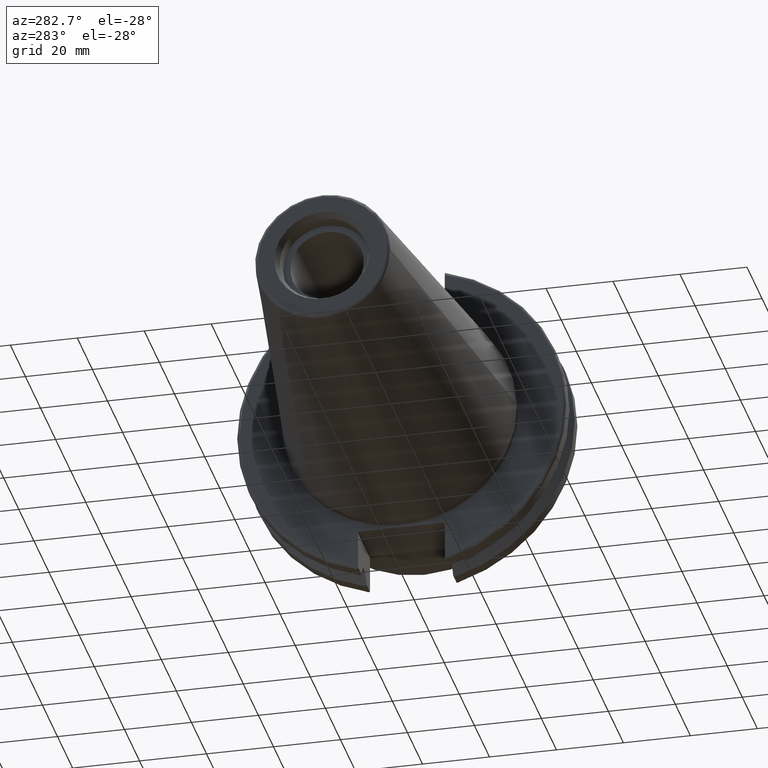
[diagram: clean part render]
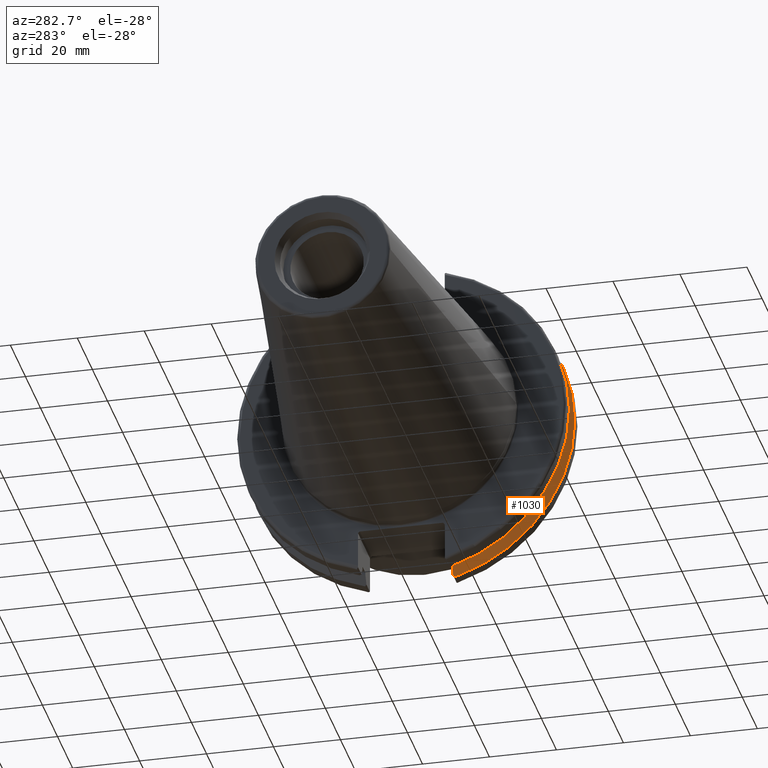
[diagram: same view with one face highlighted and labeled with its STEP entity id]
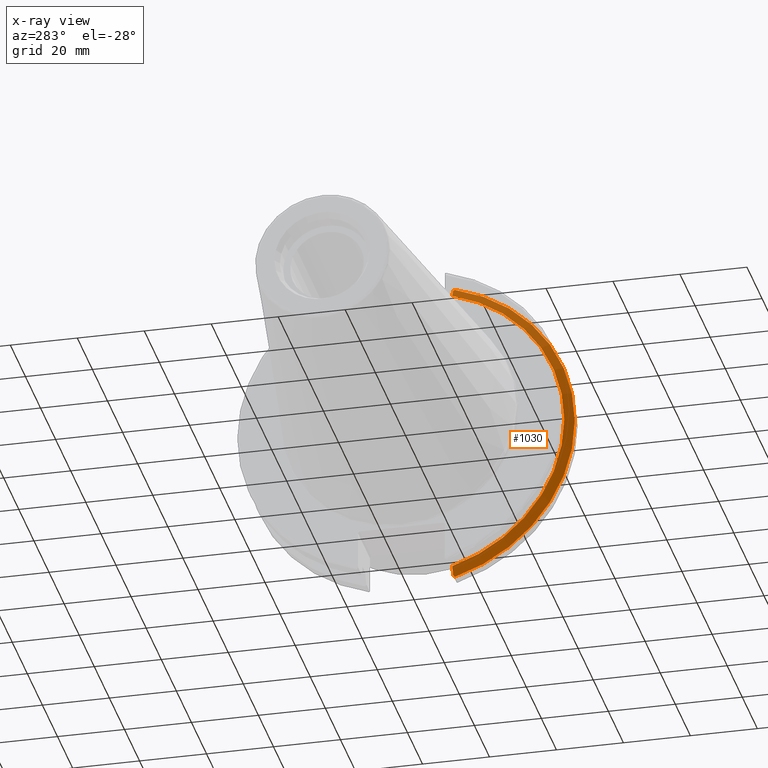
[diagram: x-ray of the same camera — body ghosted, the highlighted face saturated]
A machine part, auxiliary view. The second image highlights one B-rep face of the part: STEP entity #1030.
The next image is the same camera in x-ray: the body ghosted, the highlighted face saturated — about 0% of this face is hidden behind the body in this view.
In plain terms, the highlighted conical surface has half-angle 60 deg.
Its self-contained STEP definition (entity closure, byte-faithful):
#19=(
BOUNDED_CURVE()
B_SPLINE_CURVE(2,(#1713,#1714,#1715),.UNSPECIFIED.,.F.,.F.)
B_SPLINE_CURVE_WITH_KNOTS((3,3),(0.0558332664529572,0.331657177124506),
 .UNSPECIFIED.)
CURVE()
GEOMETRIC_REPRESENTATION_ITEM()
RATIONAL_B_SPLINE_CURVE((1.00012873636816,1.00038235574567,1.))
REPRESENTATION_ITEM('')
);
#20=(
BOUNDED_CURVE()
B_SPLINE_CURVE(2,(#1721,#1722,#1723),.UNSPECIFIED.,.F.,.F.)
B_SPLINE_CURVE_WITH_KNOTS((3,3),(0.,0.27582391067293),.UNSPECIFIED.)
CURVE()
GEOMETRIC_REPRESENTATION_ITEM()
RATIONAL_B_SPLINE_CURVE((1.,1.00038235573837,1.00012873636569))
REPRESENTATION_ITEM('')
);
#27=(
BOUNDED_CURVE()
B_SPLINE_CURVE(2,(#1856,#1857,#1858),.UNSPECIFIED.,.F.,.F.)
B_SPLINE_CURVE_WITH_KNOTS((3,3),(0.,0.0648240472897573),.UNSPECIFIED.)
CURVE()
GEOMETRIC_REPRESENTATION_ITEM()
RATIONAL_B_SPLINE_CURVE((1.,1.00011477674842,1.00019140645957))
REPRESENTATION_ITEM('')
);
#28=(
BOUNDED_CURVE()
B_SPLINE_CURVE(2,(#1872,#1873,#1874),.UNSPECIFIED.,.F.,.F.)
B_SPLINE_CURVE_WITH_KNOTS((3,3),(0.325260944932533,0.390084992222205),
 .UNSPECIFIED.)
CURVE()
GEOMETRIC_REPRESENTATION_ITEM()
RATIONAL_B_SPLINE_CURVE((1.00019140646005,1.0001147767487,1.))
REPRESENTATION_ITEM('')
);
#51=CONICAL_SURFACE('',#1153,47.8172386482472,1.0471975511966);
#142=FACE_OUTER_BOUND('',#206,.T.);
#206=EDGE_LOOP('',(#895,#896,#897,#898,#899,#900));
#402=CIRCLE('',#1147,49.2125);
#405=CIRCLE('',#1154,46.4219772964944);
#481=VERTEX_POINT('',#1710);
#482=VERTEX_POINT('',#1712);
#483=VERTEX_POINT('',#1718);
#484=VERTEX_POINT('',#1720);
#509=VERTEX_POINT('',#1854);
#510=VERTEX_POINT('',#1860);
#599=EDGE_CURVE('',#482,#481,#19,.T.);
#602=EDGE_CURVE('',#484,#483,#20,.T.);
#644=EDGE_CURVE('',#509,#483,#27,.T.);
#646=EDGE_CURVE('',#510,#509,#402,.T.);
#651=EDGE_CURVE('',#482,#510,#28,.T.);
#652=EDGE_CURVE('',#481,#484,#405,.T.);
#895=ORIENTED_EDGE('',*,*,#644,.F.);
#896=ORIENTED_EDGE('',*,*,#646,.F.);
#897=ORIENTED_EDGE('',*,*,#651,.F.);
#898=ORIENTED_EDGE('',*,*,#599,.T.);
#899=ORIENTED_EDGE('',*,*,#652,.T.);
#900=ORIENTED_EDGE('',*,*,#602,.T.);
#1030=ADVANCED_FACE('',(#142),#51,.T.);
#1147=AXIS2_PLACEMENT_3D('',#1862,#1398,#1399);
#1153=AXIS2_PLACEMENT_3D('',#1875,#1412,#1413);
#1154=AXIS2_PLACEMENT_3D('',#1876,#1414,#1415);
#1398=DIRECTION('center_axis',(1.,0.,0.));
#1399=DIRECTION('ref_axis',(0.,0.,-1.));
#1412=DIRECTION('center_axis',(1.,0.,0.));
#1413=DIRECTION('ref_axis',(0.,-1.,-1.22464679914735E-16));
#1414=DIRECTION('center_axis',(1.,0.,0.));
#1415=DIRECTION('ref_axis',(0.,0.,-1.));
#1710=CARTESIAN_POINT('',(13.0423,-12.95,44.5791147973604));
#1712=CARTESIAN_POINT('',(14.3750103943757,-12.95,46.9780755322918));
#1713=CARTESIAN_POINT('Ctrl Pts',(14.3750103943757,-12.95,46.9780755322917));
#1714=CARTESIAN_POINT('Ctrl Pts',(13.6911955094858,-12.95,45.7494966802945));
#1715=CARTESIAN_POINT('Ctrl Pts',(13.0423,-12.95,44.5791147973604));
#1718=CARTESIAN_POINT('',(14.3750103943757,-12.95,-46.9780755322917));
#1720=CARTESIAN_POINT('',(13.0423,-12.95,-44.5791147973604));
#1721=CARTESIAN_POINT('Ctrl Pts',(13.0423,-12.95,-44.5791147973604));
#1722=CARTESIAN_POINT('Ctrl Pts',(13.6911955094637,-12.95,-45.7494966802549));
#1723=CARTESIAN_POINT('Ctrl Pts',(14.3750103943757,-12.95,-46.9780755322917));
#1854=CARTESIAN_POINT('',(14.6534090340487,-13.4317035994433,-47.3440544806494));
#1856=CARTESIAN_POINT('Ctrl Pts',(14.6534090340487,-13.4317035994433,-47.3440544806494));
#1857=CARTESIAN_POINT('Ctrl Pts',(14.5131310333618,-13.1896660169966,-47.1601640966264));
#1858=CARTESIAN_POINT('Ctrl Pts',(14.3750103943757,-12.95,-46.9780755322917));
#1860=CARTESIAN_POINT('',(14.6534090340487,-13.4317035994433,47.3440544806494));
#1862=CARTESIAN_POINT('Origin',(14.6534090340487,0.,0.));
#1872=CARTESIAN_POINT('Ctrl Pts',(14.3750103943757,-12.95,46.9780755322918));
#1873=CARTESIAN_POINT('Ctrl Pts',(14.5131310333617,-13.1896660169965,47.1601640966263));
#1874=CARTESIAN_POINT('Ctrl Pts',(14.6534090340487,-13.4317035994433,47.3440544806494));
#1875=CARTESIAN_POINT('Origin',(13.8478545170244,0.,0.));
#1876=CARTESIAN_POINT('Origin',(13.0423,0.,0.));